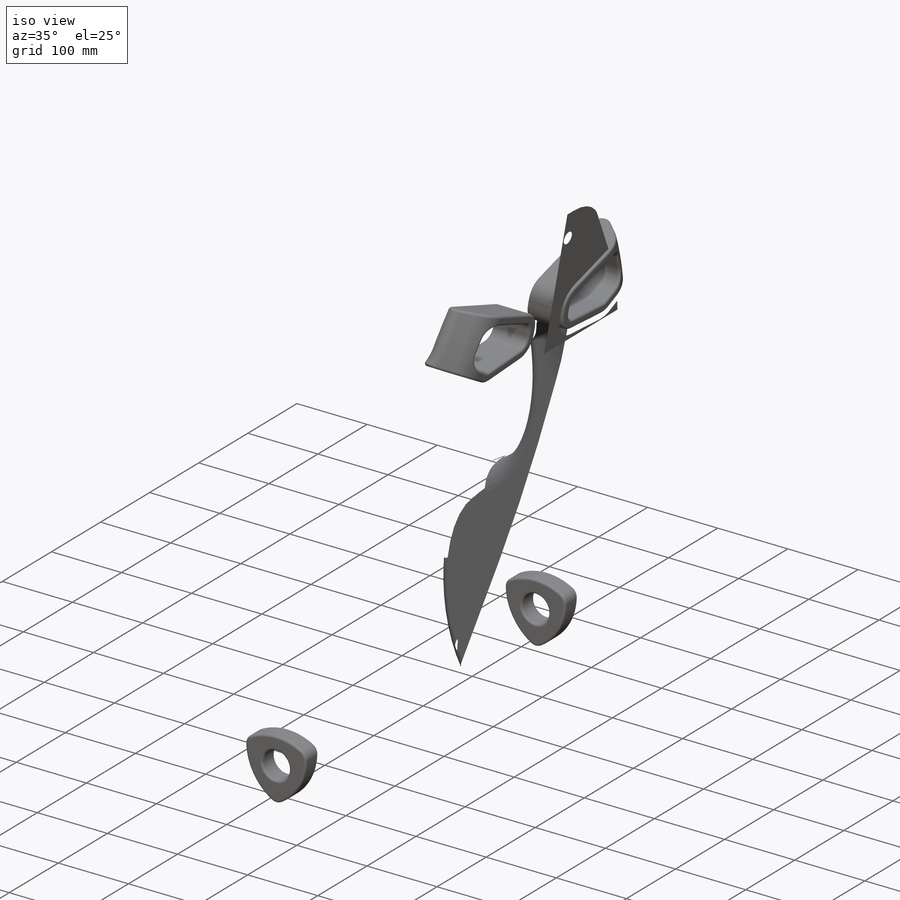
[diagram: iso view]
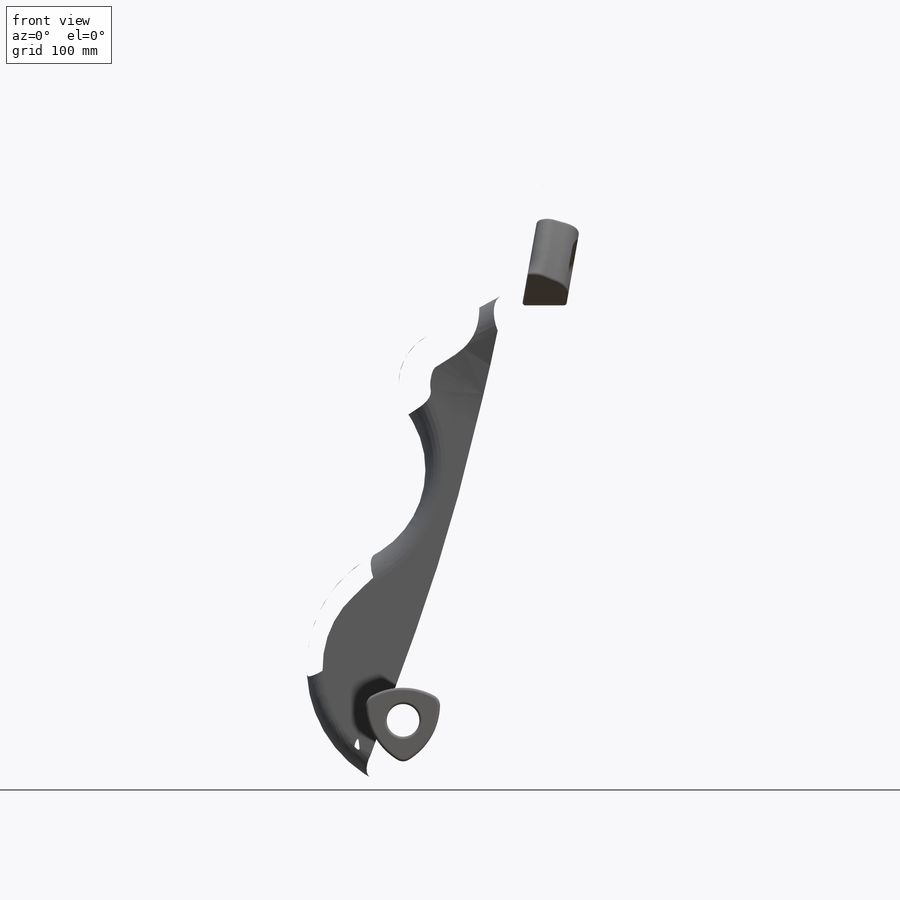
[diagram: front view]
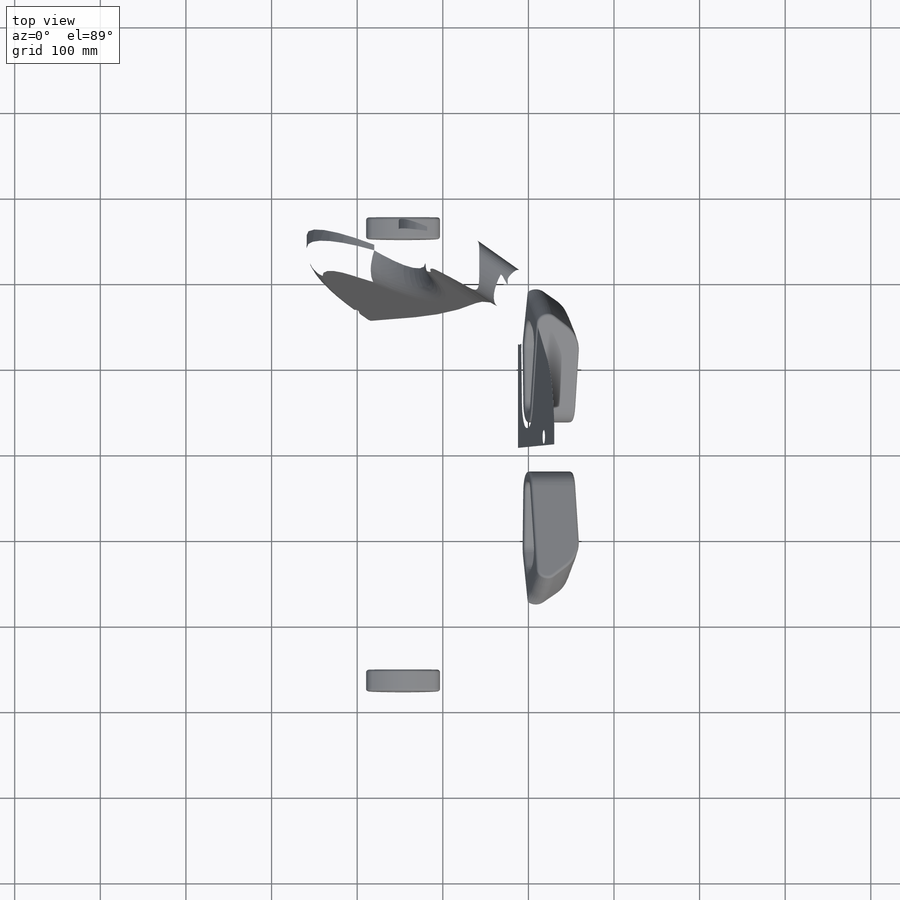
[diagram: top view]
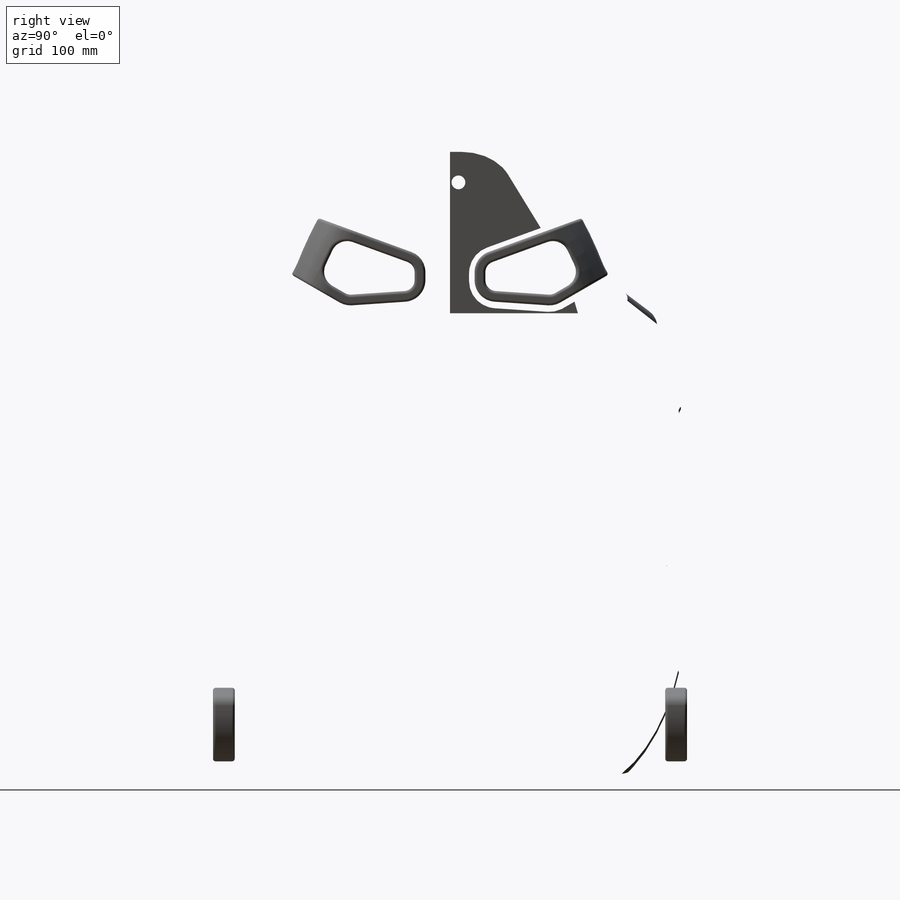
[diagram: right view]
SOLIDWORKS PART (.sldprt)
format: sldprt  version: not decoded by parser v0  size: 4,079,616 bytes
history: native  units: mm
features: sketch x22, fillet x20, extrude x8, plane x5, cut_extrude x5, shell x2, chamfer x2, material x1, sweep x1, mirror x1 (+15 scaffold rows collapsed; 5 parser-record rows omitted)
feature tree (87):
  scaffold x15  (default folders/planes/origin — collapsed)
  material  "Material <not specified>"
  plane  "side"
  plane  "top"
  plane  "front"
  parser-record x5  (decoder bookkeeping rows leaked as tree rows — omitted from the tree; the rows remain in map.json)
  sketch  "Sketch1"  dims[c1.D1=50.8mm c1.D2=2.54mm c1.D3=336.55mm c1.D4=25.4mm c1.D5=254.0mm c2.D1=2.54mm c2.D2=85.725mm]
  extrude  "slider"  Depth=209.55mm
  sketch  "Sketch2"  dims[c1.D6=152.4mm c1.D1=50.8mm c1.D2=508.0mm c2.D1=50.8mm c2.D2=508.0mm c2.D3=228.6mm c2.D4=88.9mm c2.D5=~52.772948mm c3.D5=75.0deg]
  extrude  "base cushion 1"  Depth=234.95mm
  sketch  "Sketch3"  dims[c1.D1=76.2mm c1.D2=127.0mm c1.D3=127.0mm c2.D3=75.0deg c2.D4=457.2mm]
  cut_extrude  "base cusion 2"  Depth=177.8mm
  sketch  "Sketch4"  dims[D1=0.0mm]
  extrude  "base cusion 3"  [1 undecoded]
  sketch  "Sketch5"  dims[D1=129.54mm]
  cut_extrude  "base cusion 4"  Depth=2.54mm
  fillet  "base 0.9""  Radius=22.86mm
  fillet  "base 0.75""  Radius=19.05mm
  sketch  "Sketch6"  dims[c1.D5=76.2mm c1.D13=127.0mm c1.D1=50.8mm c1.D2=25.4mm c2.D2=70.0deg c2.D3=25.4mm c2.D4=177.8mm c2.D6=190.5mm c2.D7=406.4mm c2.D8=647.7mm c2.D9=~258.618561mm c3.D9=80.0deg c3.D10=177.8mm c3.D11=152.4mm c3.D12=88.9mm c4.D11=127.0mm c4.D14=889.0mm c4.D12=88.9mm c4.D15=~123.790081mm c4.D16=50.8mm c4.D7=431.8mm c4.D17=88.9mm c4.D18=50.8mm]
  extrude  "ADJUST"  Depth=177.8mm
  fillet  "back clock 2"  Radius=2286mm
  sketch  "Sketch18"  dims[D2=3.175mm D4=6.35mm D1=0.0mm D3=25.4mm]
  cut_extrude  "back block 3"  [1 undecoded]
  fillet  "side rad 1"  Radius=508mm
  fillet  "side rad 2"  Radius=76.2mm
  fillet  "front rad 1"  Radius=50.8mm
  fillet  "back shell rad"  Radius=38.1mm
  shell  "Shell3"  Thickness=50.8mm
  fillet  "Fillet11"  Radius=12.7mm
  shell  "VarFillet3"  Thickness=0mm
  sketch  "Sketch44"  dims[c1.D10=25.4mm c1.D11=25.4mm c1.D1=698.5mm c1.D2=755.65mm c2.D1=711.2mm c2.D2=203.2mm c2.D3=25.4mm c2.D4=~49.322579mm c3.D4=60.0deg c3.D5=~93.540166mm c3.D6=~141.167753mm c4.D5=28.575mm c4.D7=6.35mm c4.D8=50.8mm c4.D9=~141.167753mm c5.D9=110.0deg c5.D5=0.127mm c5.D6=2.54mm c5.D7=5.0mm]
  sketch  "Sketch47"
  cut_extrude  "Cut-Extrude8"  [1 undecoded]
  fillet  "Fillet16"  Radius=6.35mm
  sketch  "Sketch49"  dims[D3=19.05mm D2=38.1mm D1=12.7mm]
  cut_extrude  "Cut-Extrude9"  [1 undecoded]
  fillet  "Fillet17"  Radius=3.175mm
  sketch  "Sketch43"  dims[c1.D2=279.4mm c1.D3=76.2mm c1.D1=609.6mm c1.D4=76.2mm c2.D1=292.1mm c2.D2=25.4mm c2.D3=139.7mm c3.D1=25.4mm c3.D2=50.8mm c3.D5=0.508mm c3.D6=1.0mm c3.D7=5.0mm]
  sketch  "Sketch51"  dims[D3=101.6mm D4=25.4mm D5=12.7mm D1=50.8mm D2=63.5mm]
  fillet  "Fillet18"  Radius=2.54mm
  fillet  "Fillet31"  Radius=2.54mm
  fillet  "Fillet35"  Radius=2.54mm
  plane  "Plane1"  Offset=251.46mm
  sketch  "Sketch52"  dims[c1.D4=12.7mm c1.D5=25.4mm c1.D1=152.4mm c1.D2=~22.448838mm c2.D2=60.0deg c2.D3=25.4mm]
  extrude  "Boss-Extrude1"  Depth=9.525mm
  sketch  "Sketch53"  dims[D3=50.8mm D2=76.2mm D4=330.2mm D1=5.08mm]
  extrude  "Boss-Extrude2"  Depth=69.85mm
  fillet  "Fillet19"  Radius=63.5mm
  fillet  "Fillet20"  Radius=25.4mm
  chamfer  "Chamfer2"  Distance=3.175mm Angle=45deg
  sketch  "Sketch54"  dims[c1.D1=76.2mm c1.D2=38.1mm c2.D1=76.2mm c3.D1=120.0deg]
  extrude  "Boss-Extrude3"  Depth=25.4mm
  chamfer  "Chamfer1"  Distance=6.35mm Angle=45deg
  fillet  "Fillet21"  Radius=12.7mm
  fillet  "Fillet22"  Radius=3.175mm
  sketch  "3DSketch1"  dims[c1.D6=25.4mm c1.D1=152.4mm c1.D2=~156.269181mm c1.D3=76.2mm c2.D2=152.4mm c2.D3=152.4mm c3.D2=12.7mm c3.D3=127.0mm c3.D4=25.4mm c3.D5=76.2mm]
  sketch  "Sketch55"  dims[D1=12.7mm]
  sweep  "slide adjust"
  sketch  "Sketch56"
  plane  "Plane2"
  sketch  "Sketch57"
  extrude  "Boss-Extrude4"  Depth=5.08mm
  mirror  "mirror"
  fillet  "Fillet25"  Radius=2.54mm
  fillet  "Fillet26"  Radius=2.54mm
  fillet  "Fillet27"  Radius=2.54mm
  sketch  "Sketch59"
  sketch  "Sketch60"  dims[D1=2.54mm D2=2.54mm]
  sketch  "Sketch61"
decode coverage: 50 of 61 modeling features carry decoded parameters
note: ~ marks probable driven/reference dimensions
note: 4 parameter values undecoded
summary: no parameter record found for 4 features
note: suppression state not decoded; provenance and decode notes live in map.json
